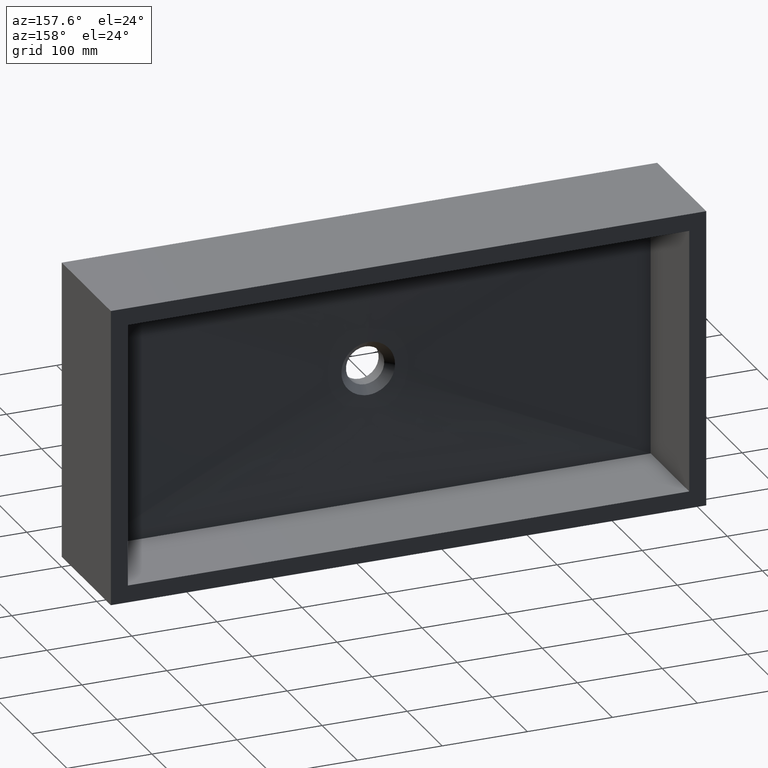
[diagram: clean part render]
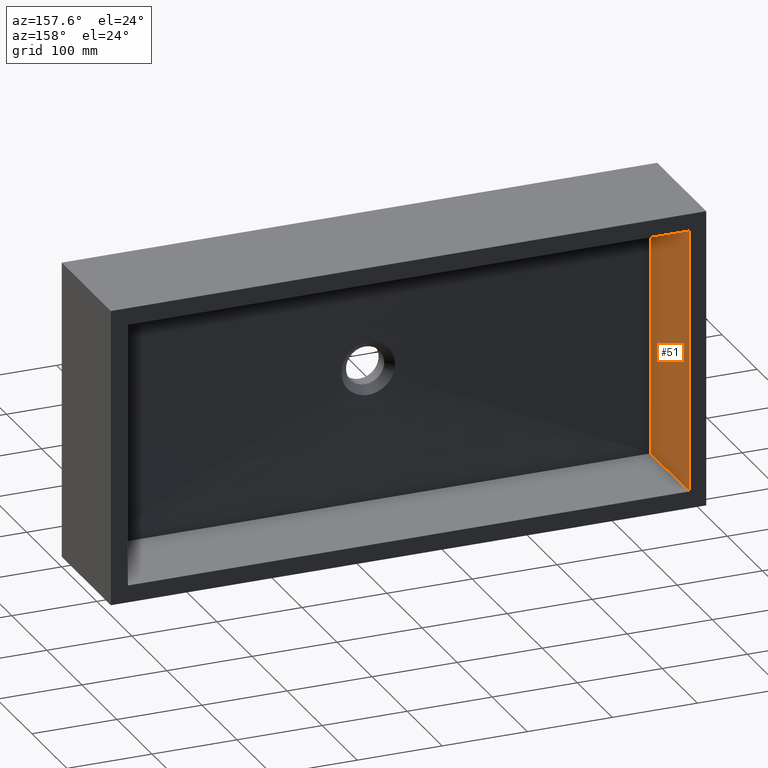
[diagram: same view with one face highlighted and labeled with its STEP entity id]
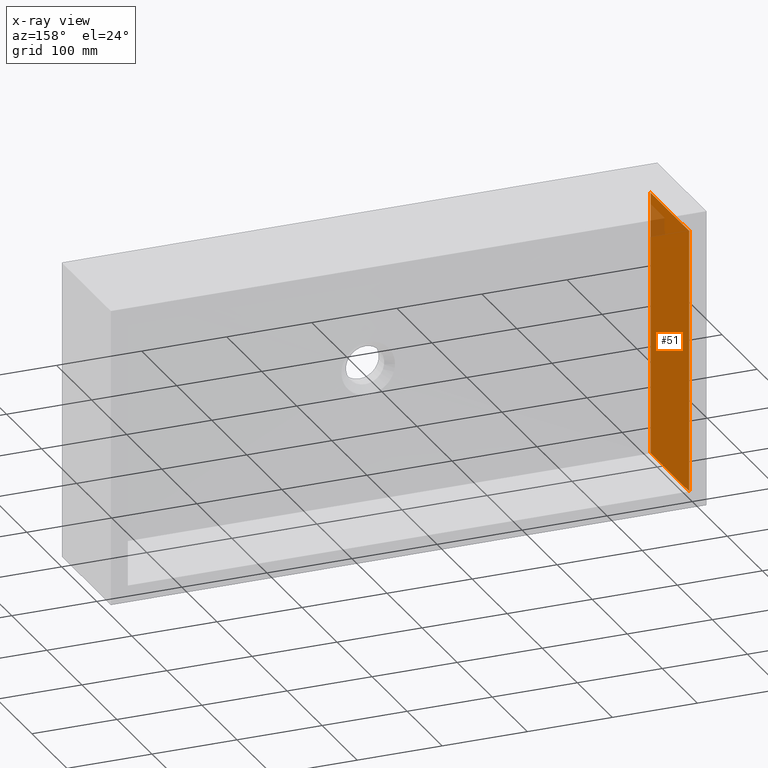
[diagram: x-ray of the same camera — body ghosted, the highlighted face saturated]
A machine part, auxiliary view. The second image highlights one B-rep face of the part: STEP entity #51.
The next image is the same camera in x-ray: the body ghosted, the highlighted face saturated — about 4% of this face is hidden behind the body in this view.
In plain terms, the highlighted planar face has unit normal (-1, 0, 0).
Its self-contained STEP definition (entity closure, byte-faithful):
#47 = DIRECTION ( 'NONE',  ( 0.0000000000000000000, 0.0000000000000000000, 1.000000000000000000 ) ) ;
#51 = ADVANCED_FACE ( 'NONE', ( #323 ), #1125, .F. ) ;
#54 = VECTOR ( 'NONE', #520, 1000.000000000000000 ) ;
#86 = ORIENTED_EDGE ( 'NONE', *, *, #1041, .F. ) ;
#88 = CARTESIAN_POINT ( 'NONE',  ( 19.99999999999999600, 30.00000000000000000, -174.9999999999996300 ) ) ;
#100 = VERTEX_POINT ( 'NONE', #114 ) ;
#114 = CARTESIAN_POINT ( 'NONE',  ( 20.00000000000000000, 140.0000000000000000, -20.00000000000000000 ) ) ;
#140 = VERTEX_POINT ( 'NONE', #1093 ) ;
#237 = EDGE_CURVE ( 'NONE', #140, #1170, #538, .T. ) ;
#258 = LINE ( 'NONE', #1071, #1057 ) ;
#263 = LINE ( 'NONE', #1179, #1192 ) ;
#266 = CARTESIAN_POINT ( 'NONE',  ( 20.00000000000000000, -729.1776189653655800, -329.9999999999999400 ) ) ;
#323 = FACE_OUTER_BOUND ( 'NONE', #953, .T. ) ;
#432 = EDGE_CURVE ( 'NONE', #1170, #100, #263, .T. ) ;
#460 = CARTESIAN_POINT ( 'NONE',  ( 20.00000000000000000, -729.1776189653655800, -329.9999999999999400 ) ) ;
#499 = ORIENTED_EDGE ( 'NONE', *, *, #1062, .T. ) ;
#520 = DIRECTION ( 'NONE',  ( -0.0000000000000000000, 1.000000000000000000, -0.0000000000000000000 ) ) ;
#538 = LINE ( 'NONE', #460, #54 ) ;
#589 = LINE ( 'NONE', #88, #646 ) ;
#646 = VECTOR ( 'NONE', #1134, 1000.000000000000000 ) ;
#735 = VERTEX_POINT ( 'NONE', #971 ) ;
#873 = ORIENTED_EDGE ( 'NONE', *, *, #237, .T. ) ;
#875 = CARTESIAN_POINT ( 'NONE',  ( 20.00000000000000000, 140.0000000000000000, -329.9999999999999400 ) ) ;
#878 = DIRECTION ( 'NONE',  ( 0.0000000000000000000, 0.0000000000000000000, 1.000000000000000000 ) ) ;
#953 = EDGE_LOOP ( 'NONE', ( #499, #873, #1139, #86 ) ) ;
#971 = CARTESIAN_POINT ( 'NONE',  ( 20.00000000000000000, 30.00000000000002800, -20.00000000000000000 ) ) ;
#1002 = DIRECTION ( 'NONE',  ( -0.0000000000000000000, 1.000000000000000000, -0.0000000000000000000 ) ) ;
#1041 = EDGE_CURVE ( 'NONE', #735, #100, #258, .T. ) ;
#1057 = VECTOR ( 'NONE', #1002, 1000.000000000000000 ) ;
#1062 = EDGE_CURVE ( 'NONE', #735, #140, #589, .T. ) ;
#1071 = CARTESIAN_POINT ( 'NONE',  ( 20.00000000000000000, -729.1776189653655800, -20.00000000000000000 ) ) ;
#1093 = CARTESIAN_POINT ( 'NONE',  ( 20.00000000000001800, 30.00000000000013900, -329.9999999999999400 ) ) ;
#1094 = AXIS2_PLACEMENT_3D ( 'NONE', #266, #1194, #878 ) ;
#1125 = PLANE ( 'NONE',  #1094 ) ;
#1134 = DIRECTION ( 'NONE',  ( 1.343011723336875100E-016, 1.343011723336875100E-016, -1.000000000000000000 ) ) ;
#1139 = ORIENTED_EDGE ( 'NONE', *, *, #432, .T. ) ;
#1170 = VERTEX_POINT ( 'NONE', #875 ) ;
#1179 = CARTESIAN_POINT ( 'NONE',  ( 20.00000000000000000, 140.0000000000000000, -329.9999999999999400 ) ) ;
#1192 = VECTOR ( 'NONE', #47, 1000.000000000000000 ) ;
#1194 = DIRECTION ( 'NONE',  ( -1.000000000000000000, 0.0000000000000000000, 0.0000000000000000000 ) ) ;